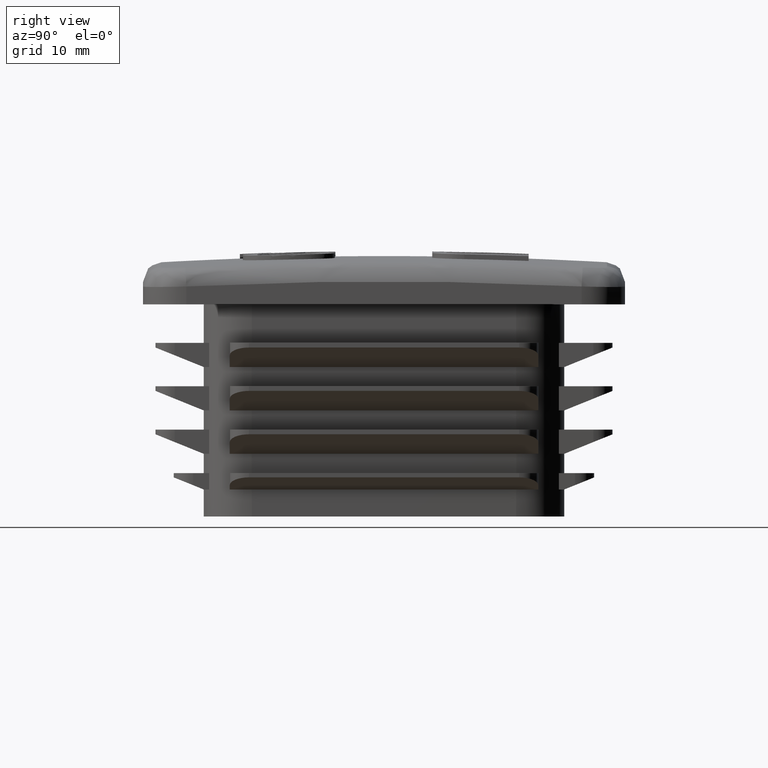
[diagram: clean part render]
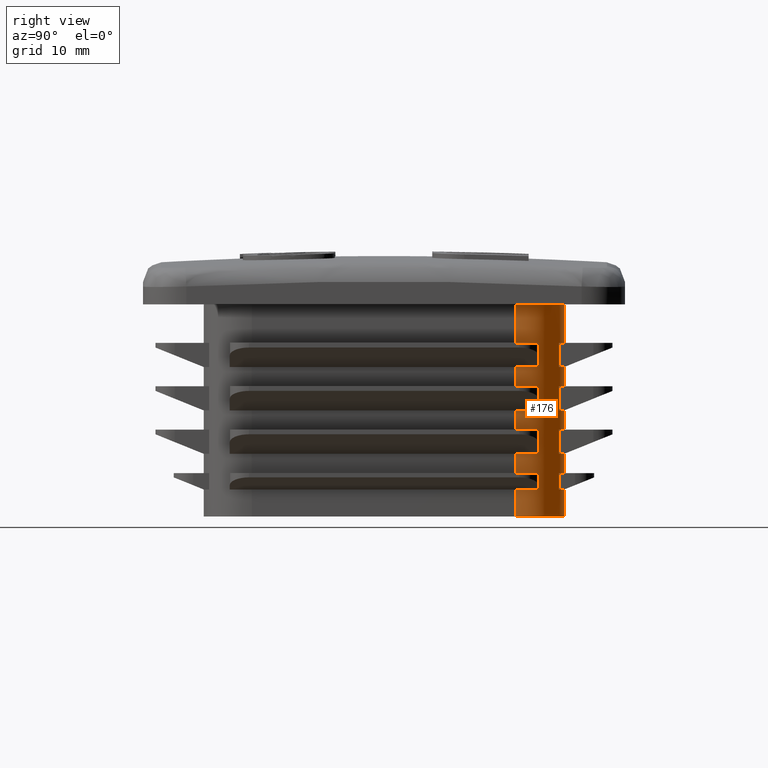
[diagram: same view with one face highlighted and labeled with its STEP entity id]
A machine part, right view. The second image highlights one B-rep face of the part: STEP entity #176.
In plain terms, the highlighted cylindrical surface (partial cylindrical patch) has radius 5 mm, axis along (0, 0, -1).
Its self-contained STEP definition (entity closure, byte-faithful):
#176 = ADVANCED_FACE( '', ( #564 ), #565, .T. );
#564 = FACE_OUTER_BOUND( '', #3024, .T. );
#565 = CYLINDRICAL_SURFACE( '', #3025, 5.00000000000000 );
#3024 = EDGE_LOOP( '', ( #4225, #4226, #4227, #4228, #4229, #4230, #4231, #4232, #4233, #4234, #4235, #4236, #4237, #4238, #4239, #4240, #4241, #4242, #4243, #4244, #4245, #4246, #4247, #4248, #4249, #4250, #4251, #4252, #4253, #4254, #4255, #4256, #4257, #4258, #4259, #4260 ) );
#3025 = AXIS2_PLACEMENT_3D( '', #4261, #4262, #4263 );
#4225 = ORIENTED_EDGE( '', *, *, #5942, .F. );
#4226 = ORIENTED_EDGE( '', *, *, #5943, .T. );
#4227 = ORIENTED_EDGE( '', *, *, #5944, .T. );
#4228 = ORIENTED_EDGE( '', *, *, #5945, .T. );
#4229 = ORIENTED_EDGE( '', *, *, #5946, .F. );
#4230 = ORIENTED_EDGE( '', *, *, #5849, .T. );
#4231 = ORIENTED_EDGE( '', *, *, #5939, .T. );
#4232 = ORIENTED_EDGE( '', *, *, #5947, .T. );
#4233 = ORIENTED_EDGE( '', *, *, #5948, .F. );
#4234 = ORIENTED_EDGE( '', *, *, #5949, .T. );
#4235 = ORIENTED_EDGE( '', *, *, #5932, .T. );
#4236 = ORIENTED_EDGE( '', *, *, #5950, .T. );
#4237 = ORIENTED_EDGE( '', *, *, #5951, .F. );
#4238 = ORIENTED_EDGE( '', *, *, #5952, .T. );
#4239 = ORIENTED_EDGE( '', *, *, #5953, .T. );
#4240 = ORIENTED_EDGE( '', *, *, #5954, .T. );
#4241 = ORIENTED_EDGE( '', *, *, #5955, .F. );
#4242 = ORIENTED_EDGE( '', *, *, #5956, .T. );
#4243 = ORIENTED_EDGE( '', *, *, #5957, .T. );
#4244 = ORIENTED_EDGE( '', *, *, #5958, .T. );
#4245 = ORIENTED_EDGE( '', *, *, #5959, .F. );
#4246 = ORIENTED_EDGE( '', *, *, #5960, .T. );
#4247 = ORIENTED_EDGE( '', *, *, #5940, .T. );
#4248 = ORIENTED_EDGE( '', *, *, #5716, .F. );
#4249 = ORIENTED_EDGE( '', *, *, #5937, .F. );
#4250 = ORIENTED_EDGE( '', *, *, #5961, .T. );
#4251 = ORIENTED_EDGE( '', *, *, #5962, .T. );
#4252 = ORIENTED_EDGE( '', *, *, #5963, .T. );
#4253 = ORIENTED_EDGE( '', *, *, #5964, .F. );
#4254 = ORIENTED_EDGE( '', *, *, #5965, .T. );
#4255 = ORIENTED_EDGE( '', *, *, #5966, .T. );
#4256 = ORIENTED_EDGE( '', *, *, #5967, .T. );
#4257 = ORIENTED_EDGE( '', *, *, #5968, .F. );
#4258 = ORIENTED_EDGE( '', *, *, #5969, .T. );
#4259 = ORIENTED_EDGE( '', *, *, #5970, .T. );
#4260 = ORIENTED_EDGE( '', *, *, #5971, .T. );
#4261 = CARTESIAN_POINT( '', ( 13.7000000000000, 13.7000000000000, 0.000000000000000 ) );
#4262 = DIRECTION( '', ( 0.000000000000000, 0.000000000000000, -1.00000000000000 ) );
#4263 = DIRECTION( '', ( 0.000000000000000, -1.00000000000000, 0.000000000000000 ) );
#5716 = EDGE_CURVE( '', #6524, #6526, #6527, .T. );
#5849 = EDGE_CURVE( '', #6725, #6723, #6726, .T. );
#5932 = EDGE_CURVE( '', #6875, #6876, #6877, .T. );
#5937 = EDGE_CURVE( '', #6882, #6524, #6884, .T. );
#5939 = EDGE_CURVE( '', #6723, #6885, #6887, .T. );
#5940 = EDGE_CURVE( '', #6888, #6526, #6889, .T. );
#5942 = EDGE_CURVE( '', #6891, #6892, #6893, .T. );
#5943 = EDGE_CURVE( '', #6891, #6894, #6895, .F. );
#5944 = EDGE_CURVE( '', #6894, #6896, #6897, .F. );
#5945 = EDGE_CURVE( '', #6896, #6898, #6899, .F. );
#5946 = EDGE_CURVE( '', #6725, #6898, #6900, .T. );
#5947 = EDGE_CURVE( '', #6885, #6901, #6902, .F. );
#5948 = EDGE_CURVE( '', #6903, #6901, #6904, .F. );
#5949 = EDGE_CURVE( '', #6903, #6875, #6905, .F. );
#5950 = EDGE_CURVE( '', #6876, #6906, #6907, .F. );
#5951 = EDGE_CURVE( '', #6908, #6906, #6909, .F. );
#5952 = EDGE_CURVE( '', #6908, #6910, #6911, .F. );
#5953 = EDGE_CURVE( '', #6910, #6912, #6913, .T. );
#5954 = EDGE_CURVE( '', #6912, #6914, #6915, .F. );
#5955 = EDGE_CURVE( '', #6916, #6914, #6917, .F. );
#5956 = EDGE_CURVE( '', #6916, #6918, #6919, .F. );
#5957 = EDGE_CURVE( '', #6918, #6920, #6921, .T. );
#5958 = EDGE_CURVE( '', #6920, #6922, #6923, .F. );
#5959 = EDGE_CURVE( '', #6924, #6922, #6925, .F. );
#5960 = EDGE_CURVE( '', #6924, #6888, #6926, .F. );
#5961 = EDGE_CURVE( '', #6882, #6927, #6928, .F. );
#5962 = EDGE_CURVE( '', #6927, #6929, #6930, .F. );
#5963 = EDGE_CURVE( '', #6929, #6931, #6932, .F. );
#5964 = EDGE_CURVE( '', #6933, #6931, #6934, .T. );
#5965 = EDGE_CURVE( '', #6933, #6935, #6936, .F. );
#5966 = EDGE_CURVE( '', #6935, #6937, #6938, .F. );
#5967 = EDGE_CURVE( '', #6937, #6939, #6940, .F. );
#5968 = EDGE_CURVE( '', #6941, #6939, #6942, .T. );
#5969 = EDGE_CURVE( '', #6941, #6943, #6944, .F. );
#5970 = EDGE_CURVE( '', #6943, #6945, #6946, .F. );
#5971 = EDGE_CURVE( '', #6945, #6892, #6947, .F. );
#6524 = VERTEX_POINT( '', #8751 );
#6526 = VERTEX_POINT( '', #8754 );
#6527 = CIRCLE( '', #8755, 5.00000000000000 );
#6723 = VERTEX_POINT( '', #9683 );
#6725 = VERTEX_POINT( '', #9686 );
#6726 = CIRCLE( '', #9687, 5.00000000000000 );
#6875 = VERTEX_POINT( '', #9884 );
#6876 = VERTEX_POINT( '', #9885 );
#6877 = LINE( '', #9886, #9887 );
#6882 = VERTEX_POINT( '', #9895 );
#6884 = LINE( '', #9898, #9899 );
#6885 = VERTEX_POINT( '', #9900 );
#6887 = LINE( '', #9903, #9904 );
#6888 = VERTEX_POINT( '', #9905 );
#6889 = LINE( '', #9906, #9907 );
#6891 = VERTEX_POINT( '', #9910 );
#6892 = VERTEX_POINT( '', #9911 );
#6893 = LINE( '', #9912, #9913 );
#6894 = VERTEX_POINT( '', #9914 );
#6895 = CIRCLE( '', #9915, 5.00000000000000 );
#6896 = VERTEX_POINT( '', #9916 );
#6897 = LINE( '', #9917, #9918 );
#6898 = VERTEX_POINT( '', #9919 );
#6899 = CIRCLE( '', #9920, 5.00000000000000 );
#6900 = LINE( '', #9921, #9922 );
#6901 = VERTEX_POINT( '', #9923 );
#6902 = CIRCLE( '', #9924, 5.00000000000000 );
#6903 = VERTEX_POINT( '', #9925 );
#6904 = LINE( '', #9926, #9927 );
#6905 = CIRCLE( '', #9928, 5.00000000000000 );
#6906 = VERTEX_POINT( '', #9929 );
#6907 = CIRCLE( '', #9930, 5.00000000000000 );
#6908 = VERTEX_POINT( '', #9931 );
#6909 = LINE( '', #9932, #9933 );
#6910 = VERTEX_POINT( '', #9934 );
#6911 = CIRCLE( '', #9935, 5.00000000000000 );
#6912 = VERTEX_POINT( '', #9936 );
#6913 = LINE( '', #9937, #9938 );
#6914 = VERTEX_POINT( '', #9939 );
#6915 = CIRCLE( '', #9940, 5.00000000000000 );
#6916 = VERTEX_POINT( '', #9941 );
#6917 = LINE( '', #9942, #9943 );
#6918 = VERTEX_POINT( '', #9944 );
#6919 = CIRCLE( '', #9945, 5.00000000000000 );
#6920 = VERTEX_POINT( '', #9946 );
#6921 = LINE( '', #9947, #9948 );
#6922 = VERTEX_POINT( '', #9949 );
#6923 = CIRCLE( '', #9950, 5.00000000000000 );
#6924 = VERTEX_POINT( '', #9951 );
#6925 = LINE( '', #9952, #9953 );
#6926 = CIRCLE( '', #9954, 5.00000000000000 );
#6927 = VERTEX_POINT( '', #9955 );
#6928 = CIRCLE( '', #9956, 5.00000000000000 );
#6929 = VERTEX_POINT( '', #9957 );
#6930 = LINE( '', #9958, #9959 );
#6931 = VERTEX_POINT( '', #9960 );
#6932 = CIRCLE( '', #9961, 5.00000000000000 );
#6933 = VERTEX_POINT( '', #9962 );
#6934 = LINE( '', #9963, #9964 );
#6935 = VERTEX_POINT( '', #9965 );
#6936 = CIRCLE( '', #9966, 5.00000000000000 );
#6937 = VERTEX_POINT( '', #9967 );
#6938 = LINE( '', #9968, #9969 );
#6939 = VERTEX_POINT( '', #9970 );
#6940 = CIRCLE( '', #9971, 5.00000000000000 );
#6941 = VERTEX_POINT( '', #9972 );
#6942 = LINE( '', #9973, #9974 );
#6943 = VERTEX_POINT( '', #9975 );
#6944 = CIRCLE( '', #9976, 5.00000000000000 );
#6945 = VERTEX_POINT( '', #9977 );
#6946 = LINE( '', #9978, #9979 );
#6947 = CIRCLE( '', #9980, 5.00000000000000 );
#8751 = CARTESIAN_POINT( '', ( 18.7000000000000, 13.7000000000000, 22.0000000000000 ) );
#8754 = CARTESIAN_POINT( '', ( 13.7000000000000, 18.7000000000000, 22.0000000000000 ) );
#8755 = AXIS2_PLACEMENT_3D( '', #10810, #10811, #10812 );
#9683 = CARTESIAN_POINT( '', ( 13.7000000000000, 18.7000000000000, 0.000000000000000 ) );
#9686 = CARTESIAN_POINT( '', ( 18.7000000000000, 13.7000000000000, 0.000000000000000 ) );
#9687 = AXIS2_PLACEMENT_3D( '', #10964, #10965, #10966 );
#9884 = CARTESIAN_POINT( '', ( 13.7000000000000, 18.7000000000000, 4.50000000000000 ) );
#9885 = CARTESIAN_POINT( '', ( 13.7000000000000, 18.7000000000000, 6.50000000000001 ) );
#9886 = CARTESIAN_POINT( '', ( 13.7000000000000, 18.7000000000000, 0.000000000000000 ) );
#9887 = VECTOR( '', #11117, 1000.00000000000 );
#9895 = CARTESIAN_POINT( '', ( 18.7000000000000, 13.7000000000000, 18.0000000000000 ) );
#9898 = CARTESIAN_POINT( '', ( 18.7000000000000, 13.7000000000000, 0.000000000000000 ) );
#9899 = VECTOR( '', #11122, 1000.00000000000 );
#9900 = CARTESIAN_POINT( '', ( 13.7000000000000, 18.7000000000000, 2.80000000000000 ) );
#9903 = CARTESIAN_POINT( '', ( 13.7000000000000, 18.7000000000000, 0.000000000000000 ) );
#9904 = VECTOR( '', #11124, 1000.00000000000 );
#9905 = CARTESIAN_POINT( '', ( 13.7000000000000, 18.7000000000000, 18.0000000000000 ) );
#9906 = CARTESIAN_POINT( '', ( 13.7000000000000, 18.7000000000000, 0.000000000000000 ) );
#9907 = VECTOR( '', #11125, 1000.00000000000 );
#9910 = CARTESIAN_POINT( '', ( 18.7000000000000, 13.7000000000000, 4.50000000000000 ) );
#9911 = CARTESIAN_POINT( '', ( 18.7000000000000, 13.7000000000000, 6.50000000000001 ) );
#9912 = CARTESIAN_POINT( '', ( 18.7000000000000, 13.7000000000000, 0.000000000000000 ) );
#9913 = VECTOR( '', #11127, 1000.00000000000 );
#9914 = CARTESIAN_POINT( '', ( 18.1395945760846, 16.0000000000000, 4.50000000000000 ) );
#9915 = AXIS2_PLACEMENT_3D( '', #11128, #11129, #11130 );
#9916 = CARTESIAN_POINT( '', ( 18.1395945760846, 16.0000000000000, 2.80000000000001 ) );
#9917 = CARTESIAN_POINT( '', ( 18.1395945760846, 16.0000000000000, 0.000000000000000 ) );
#9918 = VECTOR( '', #11131, 1000.00000000000 );
#9919 = CARTESIAN_POINT( '', ( 18.7000000000000, 13.7000000000000, 2.80000000000001 ) );
#9920 = AXIS2_PLACEMENT_3D( '', #11132, #11133, #11134 );
#9921 = CARTESIAN_POINT( '', ( 18.7000000000000, 13.7000000000000, 0.000000000000000 ) );
#9922 = VECTOR( '', #11135, 1000.00000000000 );
#9923 = CARTESIAN_POINT( '', ( 16.0000000000000, 18.1395945760846, 2.80000000000001 ) );
#9924 = AXIS2_PLACEMENT_3D( '', #11136, #11137, #11138 );
#9925 = CARTESIAN_POINT( '', ( 16.0000000000000, 18.1395945760846, 4.50000000000000 ) );
#9926 = CARTESIAN_POINT( '', ( 16.0000000000000, 18.1395945760846, 0.000000000000000 ) );
#9927 = VECTOR( '', #11139, 1000.00000000000 );
#9928 = AXIS2_PLACEMENT_3D( '', #11140, #11141, #11142 );
#9929 = CARTESIAN_POINT( '', ( 16.0000000000000, 18.1395945760846, 6.50000000000000 ) );
#9930 = AXIS2_PLACEMENT_3D( '', #11143, #11144, #11145 );
#9931 = CARTESIAN_POINT( '', ( 16.0000000000000, 18.1395945760846, 9.00000000000001 ) );
#9932 = CARTESIAN_POINT( '', ( 16.0000000000000, 18.1395945760846, 0.000000000000000 ) );
#9933 = VECTOR( '', #11146, 1000.00000000000 );
#9934 = CARTESIAN_POINT( '', ( 13.7000000000000, 18.7000000000000, 9.00000000000001 ) );
#9935 = AXIS2_PLACEMENT_3D( '', #11147, #11148, #11149 );
#9936 = CARTESIAN_POINT( '', ( 13.7000000000000, 18.7000000000001, 11.0000000000000 ) );
#9937 = CARTESIAN_POINT( '', ( 13.7000000000000, 18.7000000000000, 0.000000000000000 ) );
#9938 = VECTOR( '', #11150, 1000.00000000000 );
#9939 = CARTESIAN_POINT( '', ( 16.0000000000000, 18.1395945760846, 11.0000000000000 ) );
#9940 = AXIS2_PLACEMENT_3D( '', #11151, #11152, #11153 );
#9941 = CARTESIAN_POINT( '', ( 16.0000000000000, 18.1395945760846, 13.5000000000000 ) );
#9942 = CARTESIAN_POINT( '', ( 16.0000000000000, 18.1395945760846, 0.000000000000000 ) );
#9943 = VECTOR( '', #11154, 1000.00000000000 );
#9944 = CARTESIAN_POINT( '', ( 13.7000000000000, 18.7000000000000, 13.5000000000000 ) );
#9945 = AXIS2_PLACEMENT_3D( '', #11155, #11156, #11157 );
#9946 = CARTESIAN_POINT( '', ( 13.7000000000000, 18.7000000000000, 15.5000000000000 ) );
#9947 = CARTESIAN_POINT( '', ( 13.7000000000000, 18.7000000000000, 0.000000000000000 ) );
#9948 = VECTOR( '', #11158, 1000.00000000000 );
#9949 = CARTESIAN_POINT( '', ( 16.0000000000000, 18.1395945760846, 15.5000000000000 ) );
#9950 = AXIS2_PLACEMENT_3D( '', #11159, #11160, #11161 );
#9951 = CARTESIAN_POINT( '', ( 16.0000000000000, 18.1395945760846, 18.0000000000000 ) );
#9952 = CARTESIAN_POINT( '', ( 16.0000000000000, 18.1395945760846, 0.000000000000000 ) );
#9953 = VECTOR( '', #11162, 1000.00000000000 );
#9954 = AXIS2_PLACEMENT_3D( '', #11163, #11164, #11165 );
#9955 = CARTESIAN_POINT( '', ( 18.1395945760846, 16.0000000000000, 18.0000000000000 ) );
#9956 = AXIS2_PLACEMENT_3D( '', #11166, #11167, #11168 );
#9957 = CARTESIAN_POINT( '', ( 18.1395945760846, 16.0000000000000, 15.5000000000000 ) );
#9958 = CARTESIAN_POINT( '', ( 18.1395945760846, 16.0000000000000, 0.000000000000000 ) );
#9959 = VECTOR( '', #11169, 1000.00000000000 );
#9960 = CARTESIAN_POINT( '', ( 18.7000000000000, 13.7000000000000, 15.5000000000000 ) );
#9961 = AXIS2_PLACEMENT_3D( '', #11170, #11171, #11172 );
#9962 = CARTESIAN_POINT( '', ( 18.7000000000000, 13.7000000000000, 13.5000000000000 ) );
#9963 = CARTESIAN_POINT( '', ( 18.7000000000000, 13.7000000000000, 0.000000000000000 ) );
#9964 = VECTOR( '', #11173, 1000.00000000000 );
#9965 = CARTESIAN_POINT( '', ( 18.1395945760846, 16.0000000000000, 13.5000000000000 ) );
#9966 = AXIS2_PLACEMENT_3D( '', #11174, #11175, #11176 );
#9967 = CARTESIAN_POINT( '', ( 18.1395945760846, 16.0000000000000, 11.0000000000000 ) );
#9968 = CARTESIAN_POINT( '', ( 18.1395945760846, 16.0000000000000, 0.000000000000000 ) );
#9969 = VECTOR( '', #11177, 1000.00000000000 );
#9970 = CARTESIAN_POINT( '', ( 18.7000000000001, 13.7000000000000, 11.0000000000000 ) );
#9971 = AXIS2_PLACEMENT_3D( '', #11178, #11179, #11180 );
#9972 = CARTESIAN_POINT( '', ( 18.7000000000000, 13.7000000000000, 9.00000000000001 ) );
#9973 = CARTESIAN_POINT( '', ( 18.7000000000000, 13.7000000000000, 0.000000000000000 ) );
#9974 = VECTOR( '', #11181, 1000.00000000000 );
#9975 = CARTESIAN_POINT( '', ( 18.1395945760846, 16.0000000000000, 9.00000000000001 ) );
#9976 = AXIS2_PLACEMENT_3D( '', #11182, #11183, #11184 );
#9977 = CARTESIAN_POINT( '', ( 18.1395945760846, 16.0000000000000, 6.50000000000000 ) );
#9978 = CARTESIAN_POINT( '', ( 18.1395945760846, 16.0000000000000, 0.000000000000000 ) );
#9979 = VECTOR( '', #11185, 1000.00000000000 );
#9980 = AXIS2_PLACEMENT_3D( '', #11186, #11187, #11188 );
#10810 = CARTESIAN_POINT( '', ( 13.7000000000000, 13.7000000000000, 22.0000000000000 ) );
#10811 = DIRECTION( '', ( 0.000000000000000, 0.000000000000000, 1.00000000000000 ) );
#10812 = DIRECTION( '', ( 1.00000000000000, 0.000000000000000, 0.000000000000000 ) );
#10964 = CARTESIAN_POINT( '', ( 13.7000000000000, 13.7000000000000, 0.000000000000000 ) );
#10965 = DIRECTION( '', ( 0.000000000000000, 0.000000000000000, 1.00000000000000 ) );
#10966 = DIRECTION( '', ( 1.00000000000000, 0.000000000000000, 0.000000000000000 ) );
#11117 = DIRECTION( '', ( 0.000000000000000, 0.000000000000000, 1.00000000000000 ) );
#11122 = DIRECTION( '', ( 0.000000000000000, 0.000000000000000, 1.00000000000000 ) );
#11124 = DIRECTION( '', ( 0.000000000000000, 0.000000000000000, 1.00000000000000 ) );
#11125 = DIRECTION( '', ( 0.000000000000000, 0.000000000000000, 1.00000000000000 ) );
#11127 = DIRECTION( '', ( 0.000000000000000, 0.000000000000000, 1.00000000000000 ) );
#11128 = CARTESIAN_POINT( '', ( 13.7000000000000, 13.7000000000000, 4.50000000000000 ) );
#11129 = DIRECTION( '', ( -5.55111512312578E-017, -6.12303176911189E-017, -1.00000000000000 ) );
#11130 = DIRECTION( '', ( 0.000000000000000, 1.00000000000000, -6.12303176911189E-017 ) );
#11131 = DIRECTION( '', ( 0.000000000000000, 0.000000000000000, 1.00000000000000 ) );
#11132 = CARTESIAN_POINT( '', ( 13.7000000000000, 13.7000000000000, 2.80000000000001 ) );
#11133 = DIRECTION( '', ( 5.55111512312578E-017, 6.12303176911189E-017, 1.00000000000000 ) );
#11134 = DIRECTION( '', ( 0.000000000000000, -1.00000000000000, 6.12303176911189E-017 ) );
#11135 = DIRECTION( '', ( 0.000000000000000, 0.000000000000000, 1.00000000000000 ) );
#11136 = CARTESIAN_POINT( '', ( 13.7000000000000, 13.7000000000000, 2.80000000000001 ) );
#11137 = DIRECTION( '', ( -8.28826960832585E-032, 1.16741468922377E-016, 1.00000000000000 ) );
#11138 = DIRECTION( '', ( 0.000000000000000, -1.00000000000000, 1.16741468922377E-016 ) );
#11139 = DIRECTION( '', ( 0.000000000000000, 0.000000000000000, 1.00000000000000 ) );
#11140 = CARTESIAN_POINT( '', ( 13.7000000000000, 13.7000000000000, 4.50000000000000 ) );
#11141 = DIRECTION( '', ( 8.28826960832585E-032, -1.16741468922377E-016, -1.00000000000000 ) );
#11142 = DIRECTION( '', ( 0.000000000000000, 1.00000000000000, -1.16741468922377E-016 ) );
#11143 = CARTESIAN_POINT( '', ( 13.7000000000000, 13.7000000000000, 6.50000000000000 ) );
#11144 = DIRECTION( '', ( -8.28826960832585E-032, 1.16741468922377E-016, 1.00000000000000 ) );
#11145 = DIRECTION( '', ( 0.000000000000000, -1.00000000000000, 1.16741468922377E-016 ) );
#11146 = DIRECTION( '', ( 0.000000000000000, 0.000000000000000, 1.00000000000000 ) );
#11147 = CARTESIAN_POINT( '', ( 13.7000000000000, 13.7000000000000, 9.00000000000001 ) );
#11148 = DIRECTION( '', ( 8.28826960832585E-032, -1.16741468922377E-016, -1.00000000000000 ) );
#11149 = DIRECTION( '', ( 0.000000000000000, 1.00000000000000, -1.16741468922377E-016 ) );
#11150 = DIRECTION( '', ( 0.000000000000000, 0.000000000000000, 1.00000000000000 ) );
#11151 = CARTESIAN_POINT( '', ( 13.7000000000000, 13.7000000000000, 11.0000000000000 ) );
#11152 = DIRECTION( '', ( -8.28826960832585E-032, 1.16741468922377E-016, 1.00000000000000 ) );
#11153 = DIRECTION( '', ( 0.000000000000000, -1.00000000000000, 1.16741468922377E-016 ) );
#11154 = DIRECTION( '', ( 0.000000000000000, 0.000000000000000, 1.00000000000000 ) );
#11155 = CARTESIAN_POINT( '', ( 13.7000000000000, 13.7000000000000, 13.5000000000000 ) );
#11156 = DIRECTION( '', ( 8.28826960832585E-032, -1.16741468922377E-016, -1.00000000000000 ) );
#11157 = DIRECTION( '', ( 0.000000000000000, 1.00000000000000, -1.16741468922377E-016 ) );
#11158 = DIRECTION( '', ( 0.000000000000000, 0.000000000000000, 1.00000000000000 ) );
#11159 = CARTESIAN_POINT( '', ( 13.7000000000000, 13.7000000000000, 15.5000000000000 ) );
#11160 = DIRECTION( '', ( -8.28826960832585E-032, 1.16741468922377E-016, 1.00000000000000 ) );
#11161 = DIRECTION( '', ( 0.000000000000000, -1.00000000000000, 1.16741468922377E-016 ) );
#11162 = DIRECTION( '', ( 0.000000000000000, 0.000000000000000, 1.00000000000000 ) );
#11163 = CARTESIAN_POINT( '', ( 13.7000000000000, 13.7000000000000, 18.0000000000000 ) );
#11164 = DIRECTION( '', ( 8.28826960832585E-032, -1.16741468922377E-016, -1.00000000000000 ) );
#11165 = DIRECTION( '', ( 0.000000000000000, 1.00000000000000, -1.16741468922377E-016 ) );
#11166 = CARTESIAN_POINT( '', ( 13.7000000000000, 13.7000000000000, 18.0000000000000 ) );
#11167 = DIRECTION( '', ( -5.55111512312578E-017, -6.12303176911189E-017, -1.00000000000000 ) );
#11168 = DIRECTION( '', ( 0.000000000000000, 1.00000000000000, -6.12303176911189E-017 ) );
#11169 = DIRECTION( '', ( 0.000000000000000, 0.000000000000000, 1.00000000000000 ) );
#11170 = CARTESIAN_POINT( '', ( 13.7000000000000, 13.7000000000000, 15.5000000000000 ) );
#11171 = DIRECTION( '', ( 5.55111512312578E-017, 6.12303176911189E-017, 1.00000000000000 ) );
#11172 = DIRECTION( '', ( 0.000000000000000, -1.00000000000000, 6.12303176911189E-017 ) );
#11173 = DIRECTION( '', ( 0.000000000000000, 0.000000000000000, 1.00000000000000 ) );
#11174 = CARTESIAN_POINT( '', ( 13.7000000000000, 13.7000000000000, 13.5000000000000 ) );
#11175 = DIRECTION( '', ( -5.55111512312578E-017, -6.12303176911189E-017, -1.00000000000000 ) );
#11176 = DIRECTION( '', ( 0.000000000000000, 1.00000000000000, -6.12303176911189E-017 ) );
#11177 = DIRECTION( '', ( 0.000000000000000, 0.000000000000000, 1.00000000000000 ) );
#11178 = CARTESIAN_POINT( '', ( 13.7000000000000, 13.7000000000000, 11.0000000000000 ) );
#11179 = DIRECTION( '', ( 5.55111512312578E-017, 6.12303176911189E-017, 1.00000000000000 ) );
#11180 = DIRECTION( '', ( 0.000000000000000, -1.00000000000000, 6.12303176911189E-017 ) );
#11181 = DIRECTION( '', ( 0.000000000000000, 0.000000000000000, 1.00000000000000 ) );
#11182 = CARTESIAN_POINT( '', ( 13.7000000000000, 13.7000000000000, 9.00000000000001 ) );
#11183 = DIRECTION( '', ( -5.55111512312578E-017, -6.12303176911189E-017, -1.00000000000000 ) );
#11184 = DIRECTION( '', ( 0.000000000000000, 1.00000000000000, -6.12303176911189E-017 ) );
#11185 = DIRECTION( '', ( 0.000000000000000, 0.000000000000000, 1.00000000000000 ) );
#11186 = CARTESIAN_POINT( '', ( 13.7000000000000, 13.7000000000000, 6.50000000000000 ) );
#11187 = DIRECTION( '', ( 5.55111512312578E-017, 6.12303176911189E-017, 1.00000000000000 ) );
#11188 = DIRECTION( '', ( 0.000000000000000, -1.00000000000000, 6.12303176911189E-017 ) );